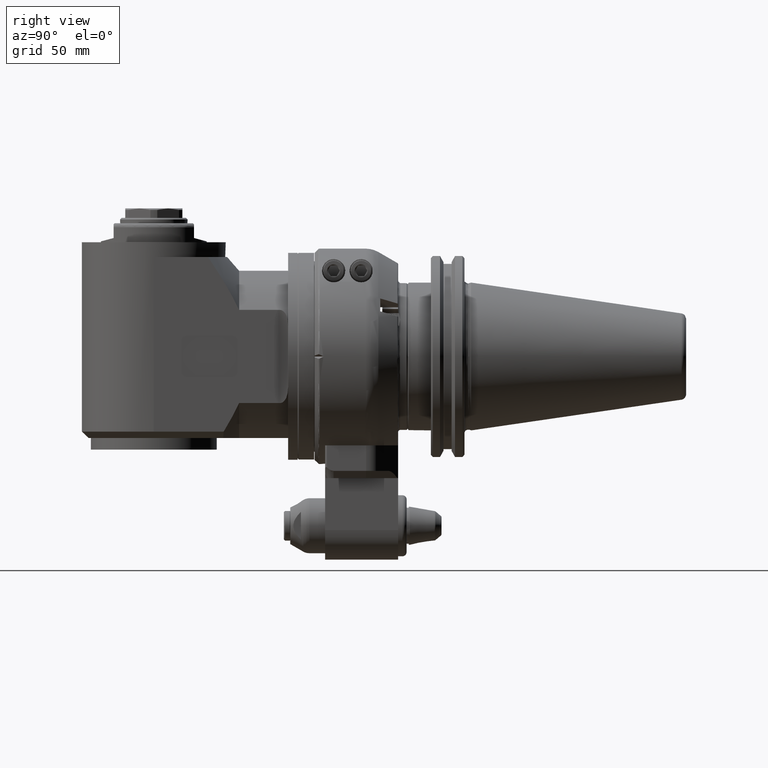
[diagram: clean part render]
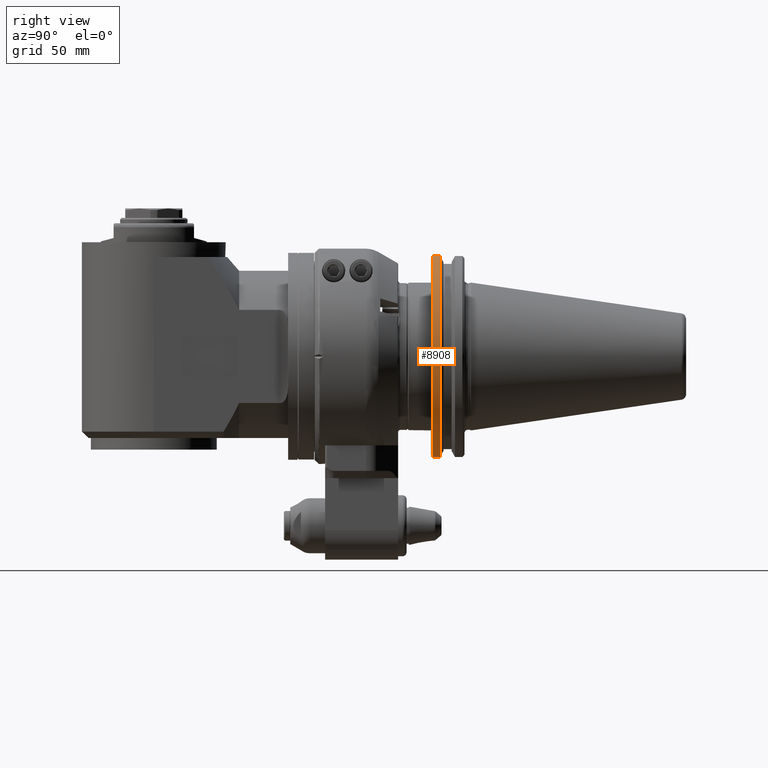
[diagram: same view with one face highlighted and labeled with its STEP entity id]
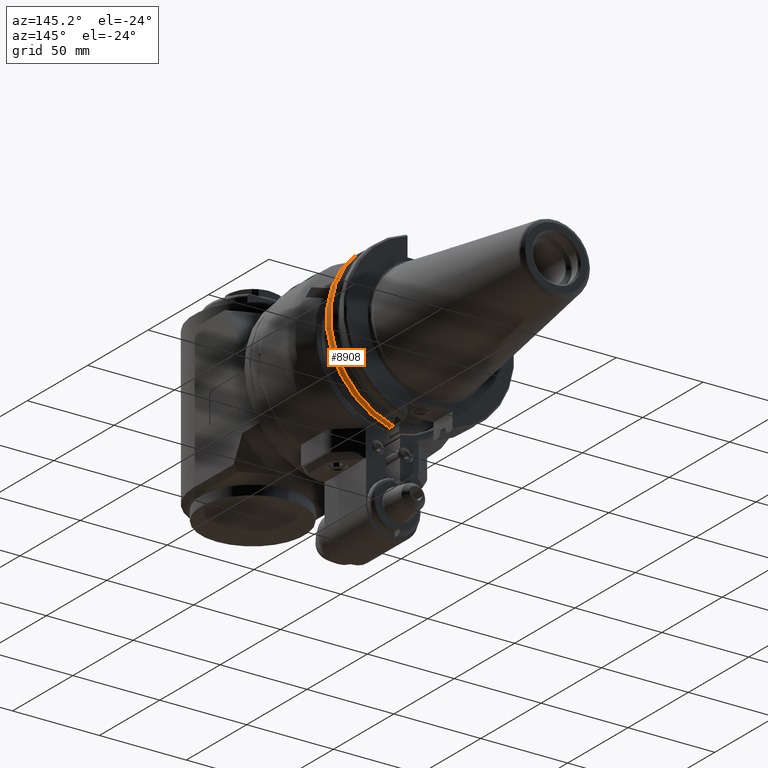
[diagram: same view with one face highlighted and labeled with its STEP entity id]
A machine part, right view. The second image highlights one B-rep face of the part: STEP entity #8908.
A second angle (auxiliary view) of the same face is appended — the face is thin or edge-on in the first view.
In plain terms, the highlighted cylindrical surface (partial cylindrical patch) has radius 49.2125 mm, axis along (0, -1, 0).
Its self-contained STEP definition (entity closure, byte-faithful):
#870=LINE('',#17482,#1487);
#903=LINE('',#17673,#1520);
#1487=VECTOR('',#12418,3.435333230924);
#1520=VECTOR('',#12591,3.435333230925);
#1711=CYLINDRICAL_SURFACE('',#10000,49.2125);
#2275=FACE_OUTER_BOUND('',#2881,.T.);
#2881=EDGE_LOOP('',(#7933,#7934,#7935,#7936));
#3420=CIRCLE('',#9999,49.2125);
#3421=CIRCLE('',#10001,49.2125);
#4172=VERTEX_POINT('',#17479);
#4173=VERTEX_POINT('',#17481);
#4225=VERTEX_POINT('',#17668);
#4226=VERTEX_POINT('',#17672);
#5399=EDGE_CURVE('',#4173,#4172,#870,.T.);
#5480=EDGE_CURVE('',#4226,#4225,#903,.T.);
#5482=EDGE_CURVE('',#4226,#4172,#3420,.T.);
#5483=EDGE_CURVE('',#4173,#4225,#3421,.T.);
#7933=ORIENTED_EDGE('',*,*,#5399,.T.);
#7934=ORIENTED_EDGE('',*,*,#5482,.F.);
#7935=ORIENTED_EDGE('',*,*,#5480,.T.);
#7936=ORIENTED_EDGE('',*,*,#5483,.F.);
#8908=ADVANCED_FACE('',(#2275),#1711,.T.);
#9999=AXIS2_PLACEMENT_3D('',#17676,#12596,#12597);
#10000=AXIS2_PLACEMENT_3D('',#17677,#12598,#12599);
#10001=AXIS2_PLACEMENT_3D('',#17678,#12600,#12601);
#12418=DIRECTION('',(0.,-1.,0.));
#12591=DIRECTION('',(-8.738724475291E-14,1.,-2.275170869306E-14));
#12596=DIRECTION('center_axis',(0.,-1.,0.));
#12597=DIRECTION('ref_axis',(0.2632258064516,0.,-0.964734250878399));
#12598=DIRECTION('center_axis',(0.,-1.,0.));
#12599=DIRECTION('ref_axis',(1.,0.,0.));
#12600=DIRECTION('center_axis',(0.,1.,0.));
#12601=DIRECTION('ref_axis',(1.,0.,0.));
#17479=CARTESIAN_POINT('',(12.954,55.8625,47.47698432135));
#17481=CARTESIAN_POINT('',(12.954,59.29783323092,47.47698432135));
#17482=CARTESIAN_POINT('',(12.954,59.29783323092,47.47698432135));
#17668=CARTESIAN_POINT('',(12.954,59.29783323092,-47.47698432135));
#17672=CARTESIAN_POINT('',(12.954,55.8625,-47.47698432135));
#17673=CARTESIAN_POINT('',(12.954,55.8625,-47.47698432135));
#17676=CARTESIAN_POINT('Origin',(0.,55.8625,0.));
#17677=CARTESIAN_POINT('Origin',(0.,57.52764574358,0.));
#17678=CARTESIAN_POINT('Origin',(0.,59.29783323092,0.));